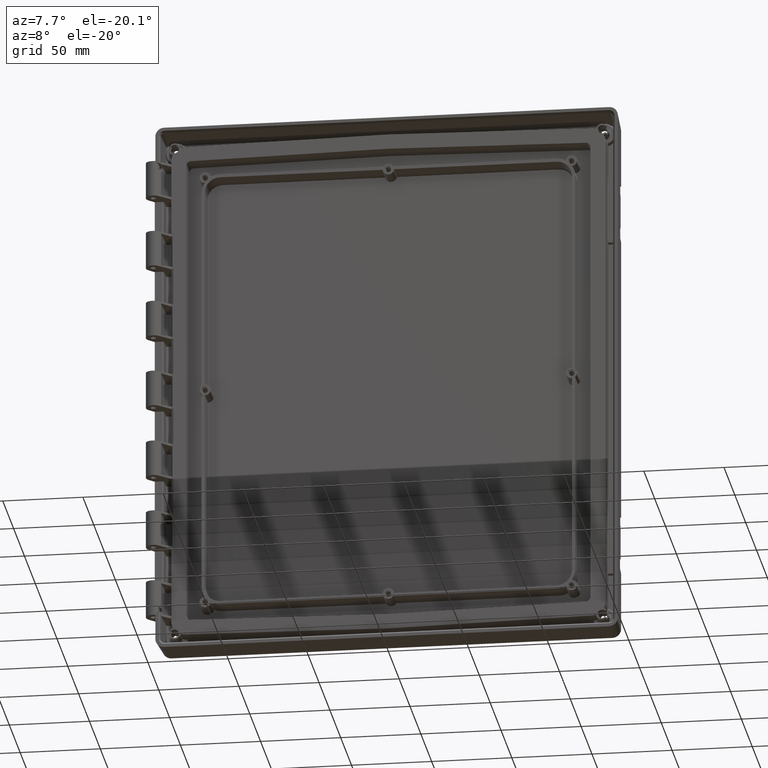
[diagram: clean part render]
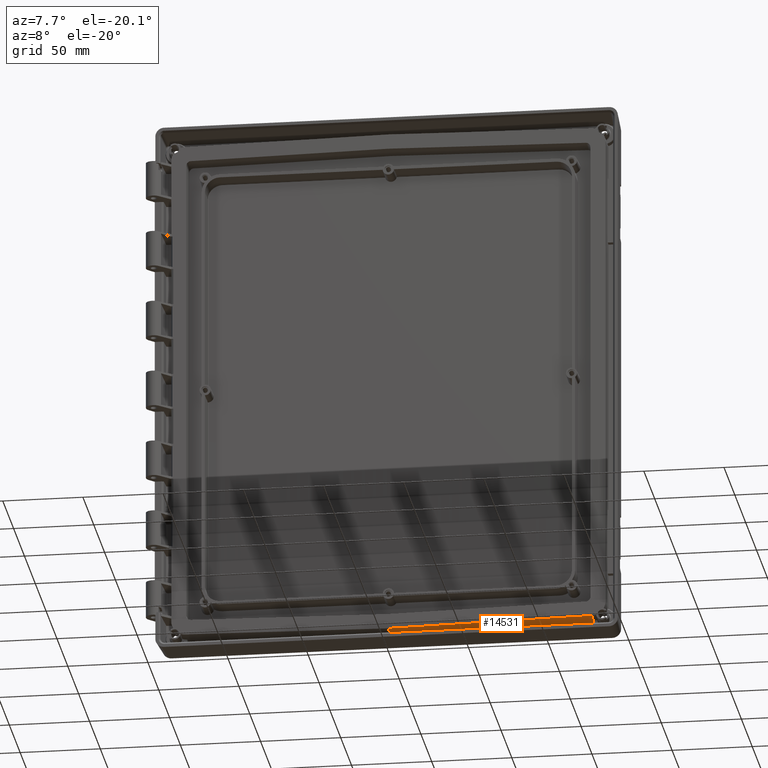
[diagram: same view with one face highlighted and labeled with its STEP entity id]
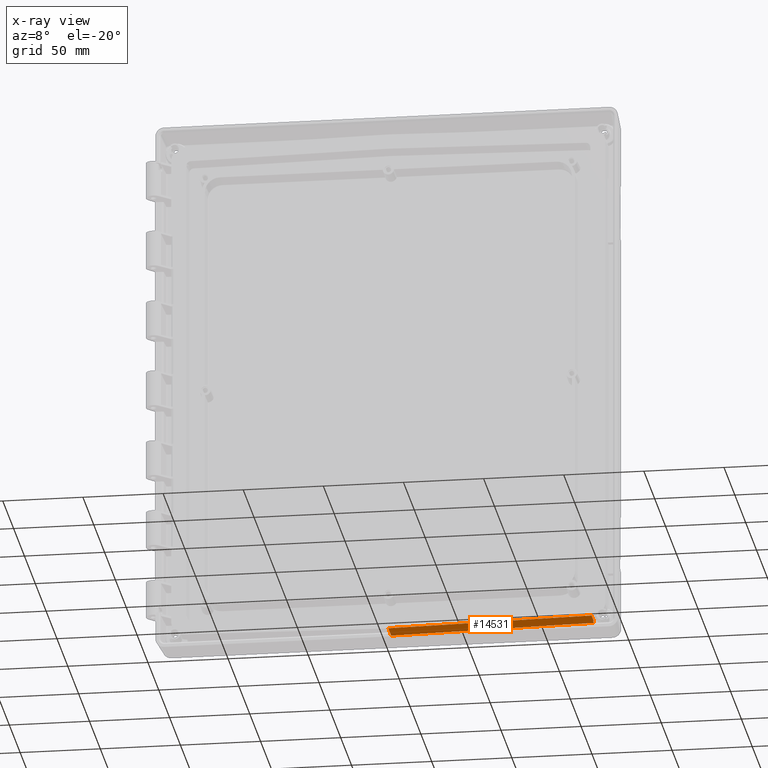
[diagram: x-ray of the same camera — body ghosted, the highlighted face saturated]
A machine part, auxiliary view. The second image highlights one B-rep face of the part: STEP entity #14531.
The next image is the same camera in x-ray: the body ghosted, the highlighted face saturated — about 0% of this face is hidden behind the body in this view.
In plain terms, the highlighted planar face has unit normal (0.0174, -0.0175, -0.9997).
Its self-contained STEP definition (entity closure, byte-faithful):
#1193=DIRECTION('',(9.998476951564E-1,0.E0,1.745240643728E-2));
#1194=VECTOR('',#1193,1.268392665338E2);
#1195=CARTESIAN_POINT('',(-7.925512098457E-13,0.E0,-1.626018365683E2));
#1196=LINE('',#1195,#1194);
#5396=CARTESIAN_POINT('',(1.264416252304E2,9.8E0,-1.605658754837E2));
#5397=CARTESIAN_POINT('',(1.264443076316E2,1.080000016424E1,-1.605832863890E2));
#5398=CARTESIAN_POINT('',(1.264470571358E2,1.180000016441E1,-1.606006961200E2));
#5399=CARTESIAN_POINT('',(1.264498739563E2,1.28E1,-1.606181046732E2));
#5401=DIRECTION('',(9.998476951564E-1,0.E0,1.745240643728E-2));
#5402=VECTOR('',#5401,1.264691358183E2);
#5403=CARTESIAN_POINT('',(-1.078141838352E-12,1.28E1,-1.628252954332E2));
#5404=LINE('',#5403,#5402);
#5405=DIRECTION('',(-2.230836862664E-14,9.998476487629E-1,-1.745506411829E-2));
#5406=VECTOR('',#5405,1.280195039298E1);
#5407=CARTESIAN_POINT('',(-7.925512098457E-13,0.E0,-1.626018365683E2));
#5408=LINE('',#5407,#5406);
#5414=DIRECTION('',(-3.045864904535E-4,-9.998476951564E-1,1.744974835125E-2));
#5415=VECTOR('',#5414,9.120902605499E0);
#5416=CARTESIAN_POINT('',(1.268227264029E2,9.119513447854E0,-1.605473435917E2));
#5417=LINE('',#5416,#5415);
#5453=CARTESIAN_POINT('',(1.264416252304E2,9.8E0,-1.605658754837E2));
#5454=CARTESIAN_POINT('',(1.264413749781E2,9.706705878208E0,-1.605642511489E2));
#5455=CARTESIAN_POINT('',(1.264708664411E2,9.531634819767E0,-1.605606800313E2));
#5456=CARTESIAN_POINT('',(1.266110293629E2,9.283027700749E0,-1.605538933640E2));
#5457=CARTESIAN_POINT('',(1.267440978831E2,9.167721845730E0,-1.605495576666E2));
#5458=CARTESIAN_POINT('',(1.268227264029E2,9.119513447854E0,-1.605473435917E2));
#7506=CARTESIAN_POINT('',(-7.925512098457E-13,0.E0,-1.626018365683E2));
#7507=CARTESIAN_POINT('',(1.268199482992E2,0.E0,-1.603881861365E2));
#7508=VERTEX_POINT('',#7506);
#7509=VERTEX_POINT('',#7507);
#7622=CARTESIAN_POINT('',(-1.078141838352E-12,1.28E1,-1.628252954332E2));
#7623=VERTEX_POINT('',#7622);
#7638=CARTESIAN_POINT('',(1.264498739563E2,1.28E1,-1.606181046732E2));
#7639=VERTEX_POINT('',#7638);
#8043=CARTESIAN_POINT('',(1.264416252304E2,9.8E0,-1.605658754837E2));
#8045=VERTEX_POINT('',#8043);
#8060=VERTEX_POINT('',#5458);
#14515=CARTESIAN_POINT('',(-7.543442402268E0,0.E0,-1.627335078452E2));
#14516=DIRECTION('',(1.744974835125E-2,-1.745240643728E-2,-9.996954135095E-1));
#14517=DIRECTION('',(9.998476951564E-1,0.E0,1.745240643728E-2));
#14518=AXIS2_PLACEMENT_3D('',#14515,#14516,#14517);
#14519=PLANE('',#14518);
#14521=ORIENTED_EDGE('',*,*,#14520,.F.);
#14523=ORIENTED_EDGE('',*,*,#14522,.F.);
#14525=ORIENTED_EDGE('',*,*,#14524,.T.);
#14526=ORIENTED_EDGE('',*,*,#12847,.F.);
#14527=ORIENTED_EDGE('',*,*,#14509,.F.);
#14528=ORIENTED_EDGE('',*,*,#8932,.T.);
#14529=EDGE_LOOP('',(#14521,#14523,#14525,#14526,#14527,#14528));
#14530=FACE_OUTER_BOUND('',#14529,.F.);
#14531=ADVANCED_FACE('',(#14530),#14519,.T.);
#5400=B_SPLINE_CURVE_WITH_KNOTS('',3,(#5396,#5397,#5398,#5399),.UNSPECIFIED.,
.F.,.F.,(4,4),(0.E0,1.E0),.UNSPECIFIED.);
#5459=B_SPLINE_CURVE_WITH_KNOTS('',3,(#5453,#5454,#5455,#5456,#5457,#5458),
.UNSPECIFIED.,.F.,.F.,(4,1,1,4),(0.E0,3.333333333333E-1,6.666666666667E-1,1.E0),
.UNSPECIFIED.);
#8932=EDGE_CURVE('',#7508,#7509,#1196,.T.);
#12847=EDGE_CURVE('',#7623,#7639,#5404,.T.);
#14509=EDGE_CURVE('',#7508,#7623,#5408,.T.);
#14520=EDGE_CURVE('',#8060,#7509,#5417,.T.);
#14522=EDGE_CURVE('',#8045,#8060,#5459,.T.);
#14524=EDGE_CURVE('',#8045,#7639,#5400,.T.);